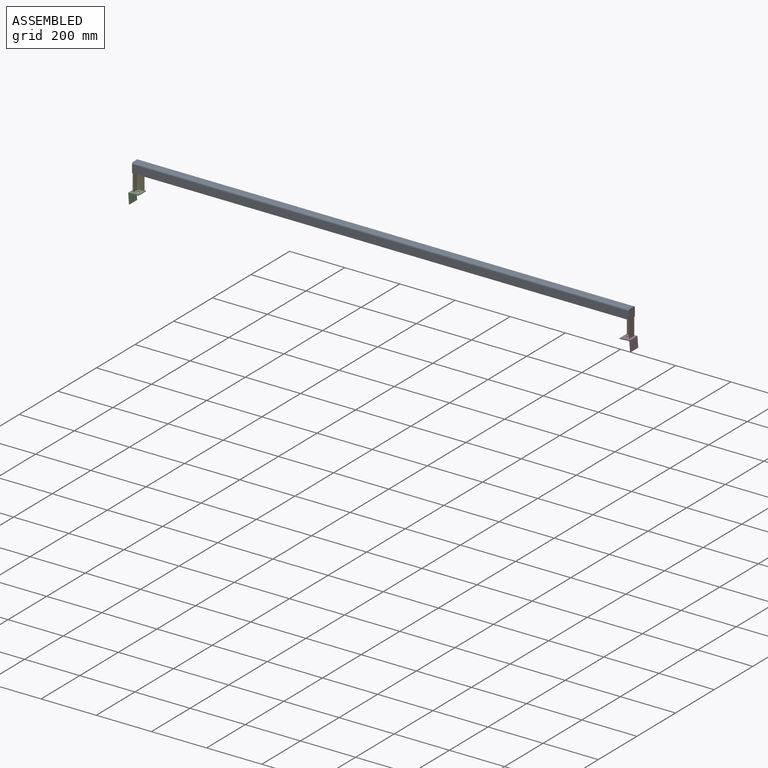
[diagram: assembled view]
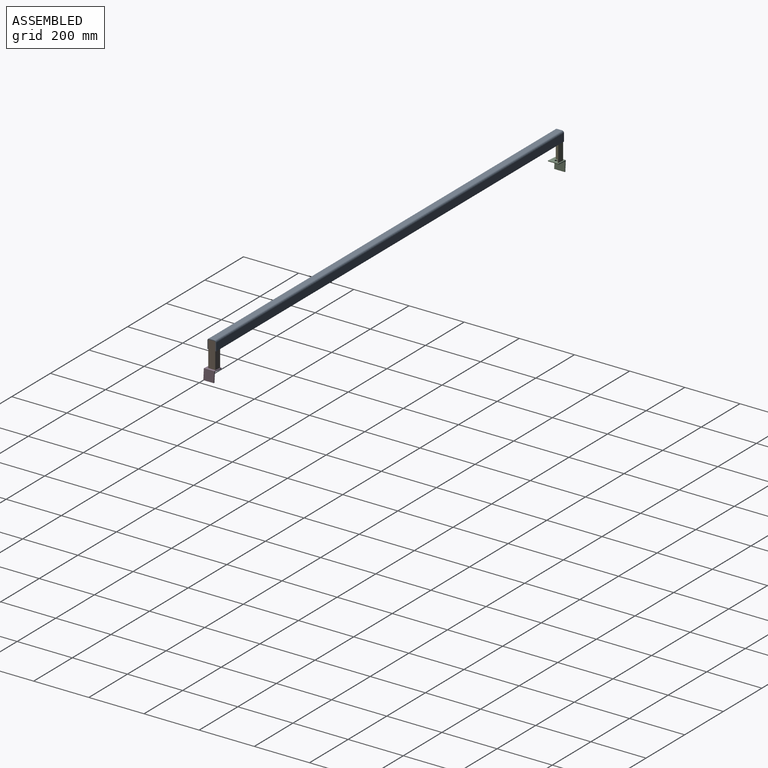
[diagram: assembled view, second angle]
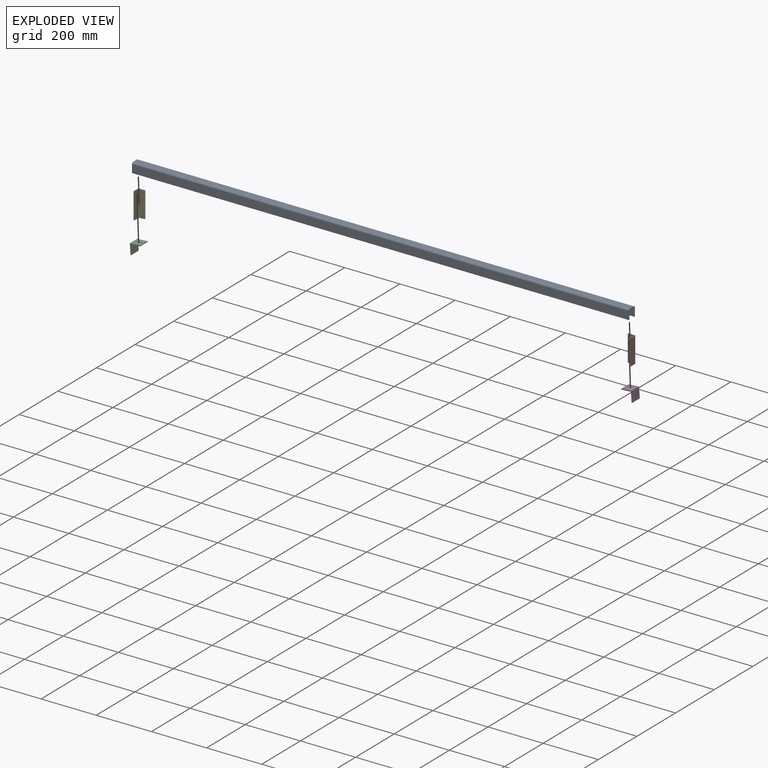
[diagram: exploded view]
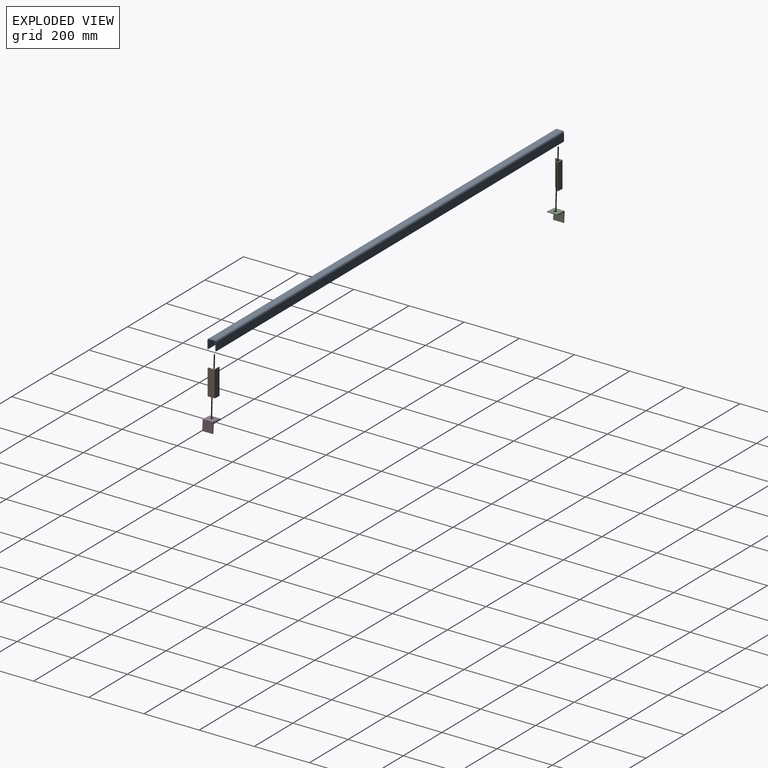
[diagram: exploded view, second angle]
ASSEMBLY  parts=5 mates=4
PART A: 22 faces, bbox 1801.2x31.5x34.8 mm
  f0: plane 1801.22x3.05mm, normal (0,0,-1), area 5490.1mm2, adj f1,f2,f3,f4
  f1: plane 28.58x3.05mm, normal (-1,0,0), area 87.1mm2, adj f0,f3,f4,f19
  f2: plane 28.58x3.05mm, normal (1,0,0), area 87.1mm2, adj f0,f3,f4,f18
  f3: plane 1801.22x28.58mm, normal (0,1,0), area 51469.7mm2, adj f0,f1,f2,f21
  f4: plane 1801.22x28.58mm, normal (0,-1,0), area 51469.7mm2, adj f0,f1,f2,f20
  f5: plane 19.05x3.05mm, normal (-1,0,0), area 58.1mm2, adj f7,f8,f15,f19
  f6: plane 19.05x3.05mm, normal (1,0,0), area 58.1mm2, adj f7,f8,f14,f18
  f7: plane 1801.22x19.05mm, normal (0,0,-1), area 34313.2mm2, adj f5,f6,f17,f21
  f8: plane 1801.22x19.05mm, normal (0,0,1), area 34313.2mm2, adj f5,f6,f16,f20
  f9: plane 28.58x3.05mm, normal (-1,0,0), area 87.1mm2, adj f10,f12,f13,f15
  f10: plane 1801.22x3.05mm, normal (0,0,-1), area 5490.1mm2, adj f9,f11,f12,f13
  f11: plane 28.58x3.05mm, normal (1,0,0), area 87.1mm2, adj f10,f12,f13,f14
  f12: plane 1801.22x28.58mm, normal (0,-1,0), area 51469.7mm2, adj f9,f10,f11,f17
  f13: plane 1801.22x28.58mm, normal (0,1,0), area 51469.7mm2, adj f9,f10,f11,f16
  f14: plane 6.22x6.22mm, normal (1,0,0), area 22.5mm2, adj f6,f11,f16,f17
  f15: plane 6.22x6.22mm, normal (-1,0,0), area 22.5mm2, adj f5,f9,f16,f17
  f16: cylinder r=6.22mm len=1801.22mm, axis (1,0,0), area 17607mm2, adj f8,f13,f14,f15
  f17: cylinder r=3.17mm len=1801.22mm, axis (1,0,0), area 8983.2mm2, adj f7,f12,f14,f15
  f18: plane 6.22x6.22mm, normal (1,0,0), area 22.5mm2, adj f2,f6,f20,f21
  f19: plane 6.22x6.22mm, normal (-1,0,0), area 22.5mm2, adj f1,f5,f20,f21
  f20: cylinder r=6.22mm len=1801.22mm, axis (1,0,0), area 17607mm2, adj f4,f8,f18,f19
  f21: cylinder r=3.17mm len=1801.22mm, axis (1,0,0), area 8983.2mm2, adj f3,f7,f18,f19
PART B: 11 faces, bbox 25.4x25.4x95.6 mm
  f0: plane 25.4x25.4mm, normal (0.07,0,-1), area 152.7mm2, adj f1,f2,f3,f4,f5,f6,f7,f8
  f1: plane 95.61x1.59mm, normal (-1,0,0), area 151.8mm2, adj f0,f2,f9,f10
  f2: plane 95.61x25.4mm, normal (0,1,0), area 2405.8mm2, adj f0,f1,f3,f10
  f3: plane 93.82x25.4mm, normal (1,0,0), area 2383.1mm2, adj f0,f2,f4,f10
  f4: plane 93.93x1.59mm, normal (0,-1,0), area 149mm2, adj f0,f3,f5,f10
  f5: cylinder r=1.59mm len=94.05mm, axis (0,0,1), area 234.4mm2, adj f0,f4,f6,f10
  f6: plane 94.05x17.46mm, normal (-1,0,0), area 1642.3mm2, adj f0,f5,f7,f10
  f7: cylinder r=3.17mm len=94.27mm, axis (0,0,1), area 469.4mm2, adj f0,f6,f8,f10
  f8: plane 95.5x17.46mm, normal (0,-1,0), area 1656.9mm2, adj f0,f7,f9,f10
  f9: cylinder r=1.59mm len=95.61mm, axis (0,0,1), area 238.3mm2, adj f0,f1,f8,f10
  f10: plane 25.4x25.4mm, normal (0,0,1), area 152.3mm2, adj f1,f2,f3,f4,f5,f6,f7,f8
PART C: 12 faces, bbox 40.7x38.1x38.1 mm
  f0: plane 38.1x38.01mm, normal (-0.07,0,1), area 1370.5mm2, adj f1,f8,f9,f10,f11
  f1: plane 38.1x1.58mm, normal (-1,0,-0.07), area 60.5mm2, adj f0,f2,f9,f10
  f2: cylinder r=1.59mm len=38.1mm, axis (0,-1,0), area 95mm2, adj f1,f3,f9,f10
  f3: plane 38.1x30.09mm, normal (0.07,0,-1), area 1068.1mm2, adj f2,f4,f9,f10,f11
  f4: cylinder r=3.17mm len=38.1mm, axis (0,-1,0), area 190mm2, adj f3,f5,f9,f10
  f5: plane 38.1x30.09mm, normal (-1,0,-0.07), area 1149.2mm2, adj f4,f6,f9,f10
  f6: cylinder r=1.59mm len=38.1mm, axis (0,-1,0), area 95mm2, adj f5,f7,f9,f10
  f7: plane 38.1x1.58mm, normal (0.07,0,-1), area 60.5mm2, adj f6,f8,f9,f10
  f8: plane 38.1x38.01mm, normal (1,0,0.07), area 1451.6mm2, adj f0,f7,f9,f10
  f9: plane 40.68x38.12mm, normal (0,1,0), area 232.9mm2, adj f0,f1,f2,f3,f4,f5,f6,f7
  f10: plane 40.68x38.12mm, normal (0,-1,0), area 232.9mm2, adj f0,f1,f2,f3,f4,f5,f6,f7
  f11: cylinder r=5.08mm len=10.36mm, axis (-0.07,0,1), area 101.3mm2, adj f0,f3
PART D: same geometry as C
PART E: 11 faces, bbox 25.4x25.4x95.2 mm
  f0: plane 25.4x25.4mm, normal (0.07,0,-1), area 152.7mm2, adj f1,f2,f3,f4,f5,f6,f8,f9
  f1: cylinder r=1.59mm len=93.48mm, axis (0,0,1), area 232.9mm2, adj f0,f2,f7,f8
  f2: plane 94.71x17.46mm, normal (0,-1,0), area 1643.1mm2, adj f0,f1,f3,f7
  f3: cylinder r=3.17mm len=94.93mm, axis (0,0,1), area 473mm2, adj f0,f2,f4,f7
  f4: plane 94.93x17.46mm, normal (1,0,0), area 1657.7mm2, adj f0,f3,f5,f7
  f5: cylinder r=1.59mm len=95.04mm, axis (0,0,1), area 236.8mm2, adj f0,f4,f6,f7
  f6: plane 95.15x1.59mm, normal (0,-1,0), area 151mm2, adj f0,f5,f7,f9
  f7: plane 25.4x25.4mm, normal (0,0,1), area 152.3mm2, adj f1,f2,f3,f4,f5,f6,f8,f9
  f8: plane 93.37x1.59mm, normal (1,0,0), area 148.2mm2, adj f0,f1,f7,f10
  f9: plane 95.15x25.4mm, normal (-1,0,0), area 2416.9mm2, adj f0,f6,f7,f10
  f10: plane 95.15x25.4mm, normal (0,1,0), area 2394.2mm2, adj f0,f7,f8,f9
PLACE A t=(0,6.35,0)mm
PLACE B t=(0,979.92,0)mm
PLACE C rot(axis=(-0.07,0,1),180deg) t=(33.1,979.92,127.84)mm
PLACE D at identity fixed
PLACE E t=(0,979.92,0)mm
MATE fastened B.f0 <-> D.f0  axis (0.07,0,-1) through (896.34,505.84,360.2)mm
MATE fastened C.f0 <-> E.f0  axis (-0.07,0,1) through (-914.12,509.01,358.22)mm
MATE fastened E.f7 <-> A.f7  axis (0,0,1) through (-904.87,493.14,454.02)mm
MATE fastened A.f7 <-> B.f10  axis (0,0,-1) through (896.34,493.14,454.02)mm
